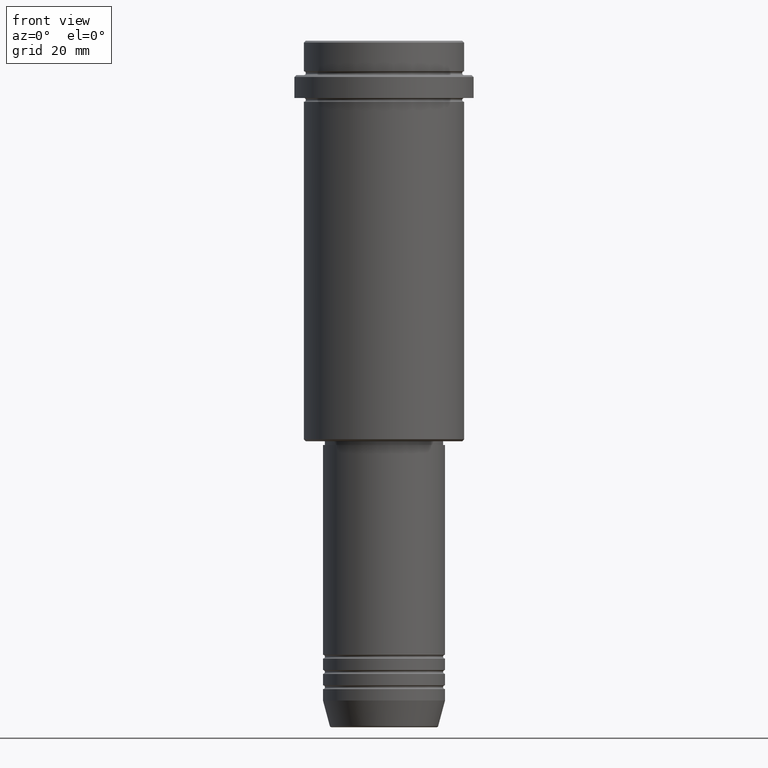
[diagram: clean part render]
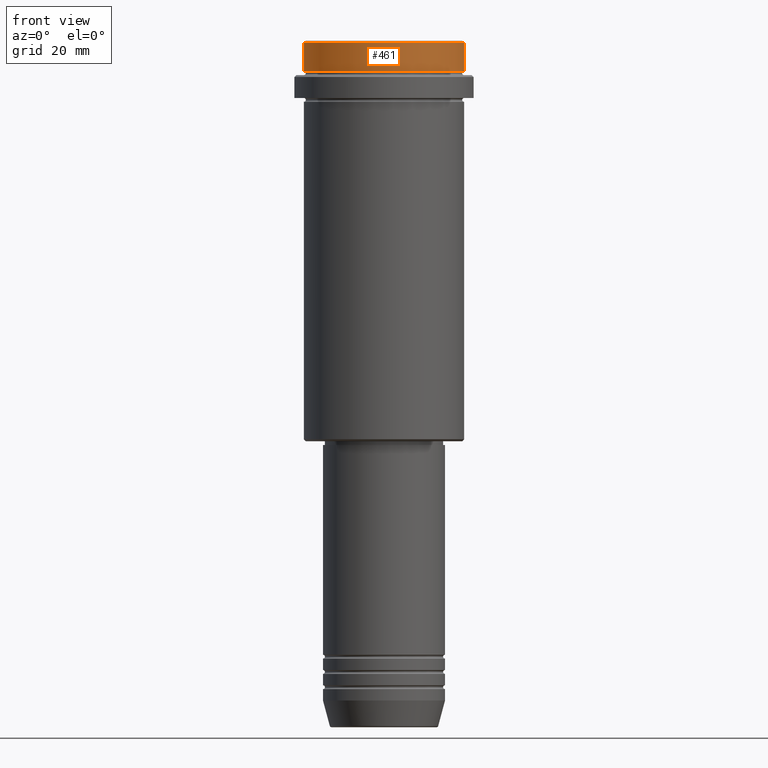
[diagram: same view with one face highlighted and labeled with its STEP entity id]
A machine part, front view. The second image highlights one B-rep face of the part: STEP entity #461.
In plain terms, the highlighted cylindrical surface (partial cylindrical patch) has radius 21 mm, axis along (-0, -0, 1).
Its self-contained STEP definition (entity closure, byte-faithful):
#30 = FACE_OUTER_BOUND ( 'NONE', #156, .T. ) ;
#63 = LINE ( 'NONE', #723, #72 ) ;
#72 = VECTOR ( 'NONE', #1068, 1000.000000000000000 ) ;
#119 = VECTOR ( 'NONE', #1243, 1000.000000000000000 ) ;
#124 = VERTEX_POINT ( 'NONE', #311 ) ;
#151 = CARTESIAN_POINT ( 'NONE',  ( 21.00000000000000000, 0.000000000000000000, 0.000000000000000000 ) ) ;
#156 = EDGE_LOOP ( 'NONE', ( #1161, #451, #355, #1074 ) ) ;
#206 = DIRECTION ( 'NONE',  ( 1.000000000000000000, 0.000000000000000000, 0.000000000000000000 ) ) ;
#306 = CARTESIAN_POINT ( 'NONE',  ( 21.00000000000000000, 0.000000000000000000, -7.999999999999998224 ) ) ;
#311 = CARTESIAN_POINT ( 'NONE',  ( 21.00000000000000000, 0.000000000000000000, -0.5000000000000108802 ) ) ;
#355 = ORIENTED_EDGE ( 'NONE', *, *, #441, .T. ) ;
#386 = LINE ( 'NONE', #151, #119 ) ;
#426 = DIRECTION ( 'NONE',  ( -0.000000000000000000, -0.000000000000000000, 1.000000000000000000 ) ) ;
#441 = EDGE_CURVE ( 'NONE', #1072, #124, #386, .T. ) ;
#451 = ORIENTED_EDGE ( 'NONE', *, *, #825, .T. ) ;
#461 = ADVANCED_FACE ( 'NONE', ( #30 ), #1260, .T. ) ;
#501 = CARTESIAN_POINT ( 'NONE',  ( 0.000000000000000000, 0.000000000000000000, -7.999999999999998224 ) ) ;
#513 = CARTESIAN_POINT ( 'NONE',  ( 0.000000000000000000, 0.000000000000000000, -0.5000000000000108802 ) ) ;
#518 = DIRECTION ( 'NONE',  ( 0.000000000000000000, 0.000000000000000000, -1.000000000000000000 ) ) ;
#584 = EDGE_CURVE ( 'NONE', #124, #1080, #685, .T. ) ;
#588 = DIRECTION ( 'NONE',  ( 1.000000000000000000, 0.000000000000000000, 0.000000000000000000 ) ) ;
#610 = EDGE_CURVE ( 'NONE', #626, #1080, #63, .T. ) ;
#626 = VERTEX_POINT ( 'NONE', #1238 ) ;
#685 = CIRCLE ( 'NONE', #1217, 21.00000000000000000 ) ;
#723 = CARTESIAN_POINT ( 'NONE',  ( -21.00000000000000000, 2.571758278209441661E-15, 0.000000000000000000 ) ) ;
#825 = EDGE_CURVE ( 'NONE', #626, #1072, #1379, .T. ) ;
#849 = AXIS2_PLACEMENT_3D ( 'NONE', #1031, #1025, #588 ) ;
#947 = AXIS2_PLACEMENT_3D ( 'NONE', #501, #426, #206 ) ;
#1025 = DIRECTION ( 'NONE',  ( -0.000000000000000000, -0.000000000000000000, 1.000000000000000000 ) ) ;
#1031 = CARTESIAN_POINT ( 'NONE',  ( 0.000000000000000000, 0.000000000000000000, 0.000000000000000000 ) ) ;
#1068 = DIRECTION ( 'NONE',  ( -0.000000000000000000, -0.000000000000000000, 1.000000000000000000 ) ) ;
#1072 = VERTEX_POINT ( 'NONE', #306 ) ;
#1074 = ORIENTED_EDGE ( 'NONE', *, *, #584, .T. ) ;
#1080 = VERTEX_POINT ( 'NONE', #1181 ) ;
#1161 = ORIENTED_EDGE ( 'NONE', *, *, #610, .F. ) ;
#1181 = CARTESIAN_POINT ( 'NONE',  ( -21.00000000000000000, 2.571758278209441661E-15, -0.5000000000000108802 ) ) ;
#1217 = AXIS2_PLACEMENT_3D ( 'NONE', #513, #518, #1387 ) ;
#1238 = CARTESIAN_POINT ( 'NONE',  ( -21.00000000000000000, 2.571758278209441661E-15, -7.999999999999998224 ) ) ;
#1243 = DIRECTION ( 'NONE',  ( -0.000000000000000000, -0.000000000000000000, 1.000000000000000000 ) ) ;
#1260 = CYLINDRICAL_SURFACE ( 'NONE', #849, 21.00000000000000000 ) ;
#1379 = CIRCLE ( 'NONE', #947, 21.00000000000000000 ) ;
#1387 = DIRECTION ( 'NONE',  ( 1.000000000000000000, 0.000000000000000000, 0.000000000000000000 ) ) ;